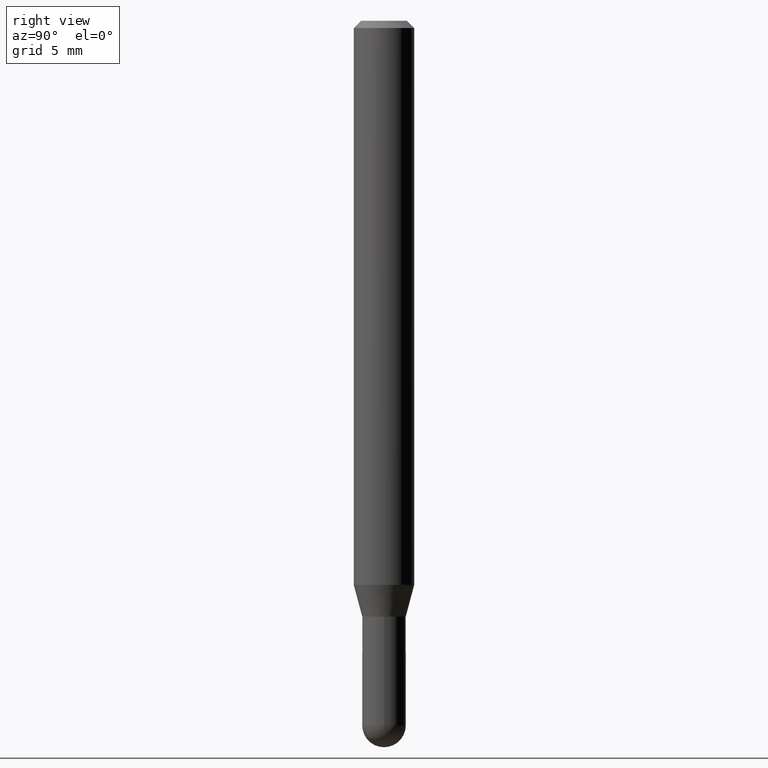
[diagram: clean part render]
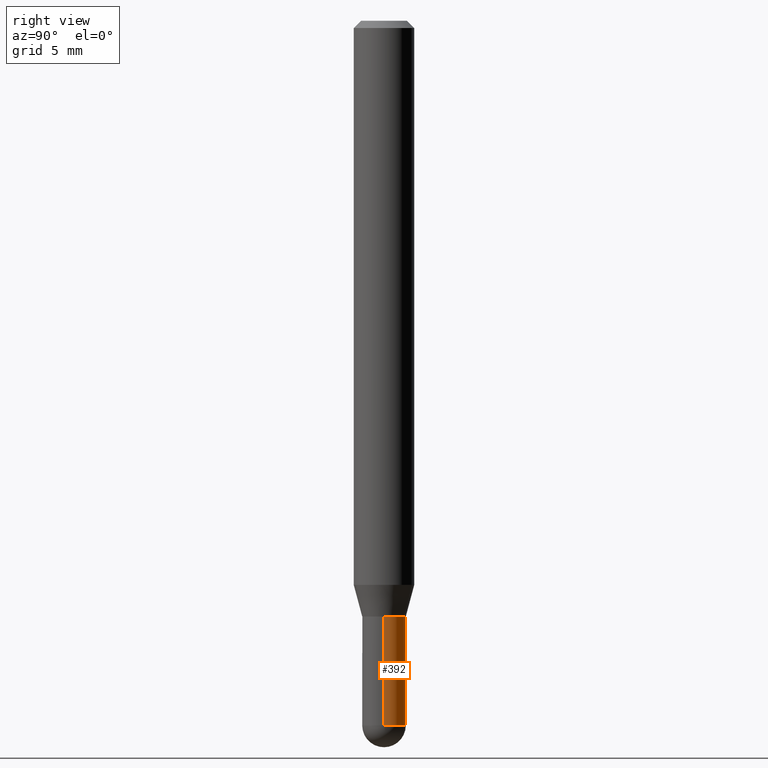
[diagram: same view with one face highlighted and labeled with its STEP entity id]
A machine part, right view. The second image highlights one B-rep face of the part: STEP entity #392.
In plain terms, the highlighted cylindrical surface (edge-blend (fillet) strip) has radius 1.143 mm, axis along (-0, 0, 1).
Its self-contained STEP definition (entity closure, byte-faithful):
#2 = CARTESIAN_POINT ( 'NONE',  ( 0.04500000000000001221, -5.001547017892805729E-15, -1.455000000000000293 ) ) ;
#11 = ORIENTED_EDGE ( 'NONE', *, *, #12, .F. ) ;
#12 = EDGE_CURVE ( 'NONE', #485, #113, #409, .T. ) ;
#15 = LINE ( 'NONE', #206, #275 ) ;
#41 = CYLINDRICAL_SURFACE ( 'NONE', #200, 0.04500000000000000527 ) ;
#44 = CARTESIAN_POINT ( 'NONE',  ( -0.04499999999999999833, -4.367569466304877886E-15, -1.230000000000000204 ) ) ;
#58 = EDGE_CURVE ( 'NONE', #192, #146, #265, .T. ) ;
#67 = CARTESIAN_POINT ( 'NONE',  ( 3.197442310920811129E-16, 0.04499999999999498151, -1.455000000000000515 ) ) ;
#87 = AXIS2_PLACEMENT_3D ( 'NONE', #101, #368, #332 ) ;
#90 = ORIENTED_EDGE ( 'NONE', *, *, #498, .T. ) ;
#97 = DIRECTION ( 'NONE',  ( 1.000000000000000000, -6.982962677686266711E-15, 0.000000000000000000 ) ) ;
#101 = CARTESIAN_POINT ( 'NONE',  ( 3.007926631607718216E-29, -4.294522046777069173E-15, -1.230000000000000204 ) ) ;
#107 = CIRCLE ( 'NONE', #408, 0.04500000000000001221 ) ;
#113 = VERTEX_POINT ( 'NONE', #488 ) ;
#135 = EDGE_CURVE ( 'NONE', #113, #423, #346, .T. ) ;
#136 = CARTESIAN_POINT ( 'NONE',  ( 3.558157112999374623E-29, -5.080105348016777334E-15, -1.455000000000000293 ) ) ;
#145 = EDGE_CURVE ( 'NONE', #485, #192, #107, .T. ) ;
#146 = VERTEX_POINT ( 'NONE', #374 ) ;
#192 = VERTEX_POINT ( 'NONE', #67 ) ;
#197 = DIRECTION ( 'NONE',  ( -2.445468806185136597E-29, 3.491481338843145583E-15, 1.000000000000000000 ) ) ;
#200 = AXIS2_PLACEMENT_3D ( 'NONE', #400, #197, #321 ) ;
#206 = CARTESIAN_POINT ( 'NONE',  ( -0.04500000000000000527, 3.197442310920451211E-16, -2.213520790614707910E-30 ) ) ;
#263 = ORIENTED_EDGE ( 'NONE', *, *, #135, .F. ) ;
#265 = CIRCLE ( 'NONE', #491, 0.04500000000000001221 ) ;
#275 = VECTOR ( 'NONE', #289, 39.37007874015748143 ) ;
#289 = DIRECTION ( 'NONE',  ( -2.445468806185136877E-29, 3.491481338843145188E-15, 1.000000000000000000 ) ) ;
#304 = DIRECTION ( 'NONE',  ( -2.445468806185136597E-29, 3.491481338843145583E-15, 1.000000000000000000 ) ) ;
#311 = ORIENTED_EDGE ( 'NONE', *, *, #145, .T. ) ;
#321 = DIRECTION ( 'NONE',  ( 1.000000000000000000, -6.982962677686267499E-15, 4.876176775795935793E-29 ) ) ;
#332 = DIRECTION ( 'NONE',  ( 1.000000000000000000, -6.982962677686269077E-15, 0.000000000000000000 ) ) ;
#338 = VECTOR ( 'NONE', #415, 39.37007874015748143 ) ;
#339 = CARTESIAN_POINT ( 'NONE',  ( 3.558157112999374623E-29, -5.080105348016777334E-15, -1.455000000000000293 ) ) ;
#346 = CIRCLE ( 'NONE', #87, 0.04499999999999999833 ) ;
#368 = DIRECTION ( 'NONE',  ( -2.445468806185136597E-29, 3.491481338843145583E-15, 1.000000000000000000 ) ) ;
#374 = CARTESIAN_POINT ( 'NONE',  ( -0.04500000000000001221, -4.367569466304877886E-15, -1.455000000000000293 ) ) ;
#380 = EDGE_LOOP ( 'NONE', ( #416, #90, #263, #11, #311 ) ) ;
#392 = ADVANCED_FACE ( 'NONE', ( #436 ), #41, .T. ) ;
#400 = CARTESIAN_POINT ( 'NONE',  ( 0.000000000000000000, 0.000000000000000000, 0.000000000000000000 ) ) ;
#408 = AXIS2_PLACEMENT_3D ( 'NONE', #136, #449, #97 ) ;
#409 = LINE ( 'NONE', #442, #338 ) ;
#415 = DIRECTION ( 'NONE',  ( -2.445468806185136877E-29, 3.491481338843145188E-15, 1.000000000000000000 ) ) ;
#416 = ORIENTED_EDGE ( 'NONE', *, *, #58, .T. ) ;
#423 = VERTEX_POINT ( 'NONE', #44 ) ;
#436 = FACE_OUTER_BOUND ( 'NONE', #380, .T. ) ;
#442 = CARTESIAN_POINT ( 'NONE',  ( 0.04500000000000000527, -3.142333204958820809E-16, 2.194279549108171317E-30 ) ) ;
#449 = DIRECTION ( 'NONE',  ( -2.445468806185136597E-29, 3.491481338843145583E-15, 1.000000000000000000 ) ) ;
#455 = DIRECTION ( 'NONE',  ( 1.000000000000000000, -6.982962677686266711E-15, 0.000000000000000000 ) ) ;
#485 = VERTEX_POINT ( 'NONE', #2 ) ;
#488 = CARTESIAN_POINT ( 'NONE',  ( 0.04499999999999999833, -4.608755367272951648E-15, -1.230000000000000204 ) ) ;
#491 = AXIS2_PLACEMENT_3D ( 'NONE', #339, #304, #455 ) ;
#498 = EDGE_CURVE ( 'NONE', #146, #423, #15, .T. ) ;